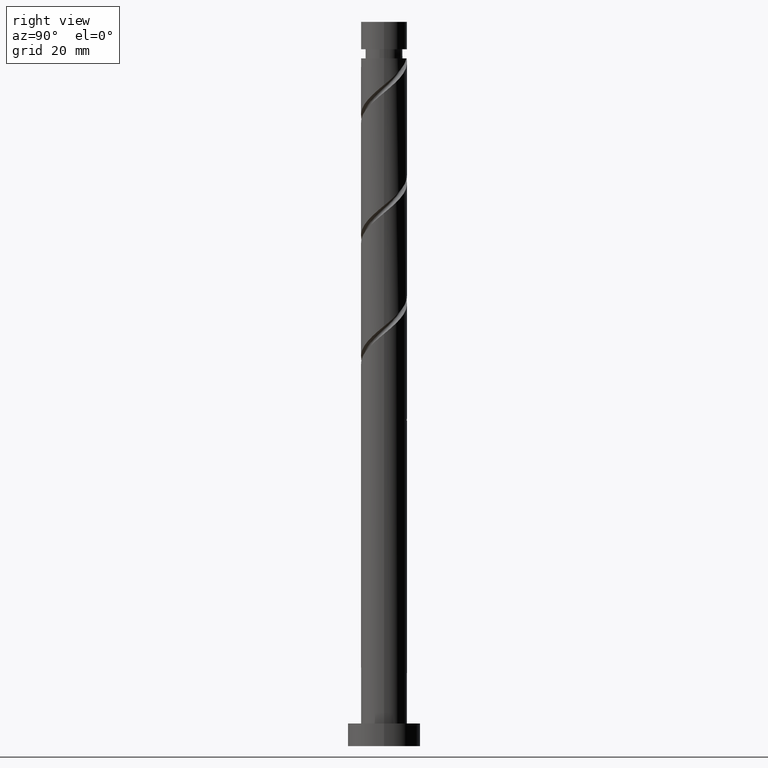
[diagram: clean part render]
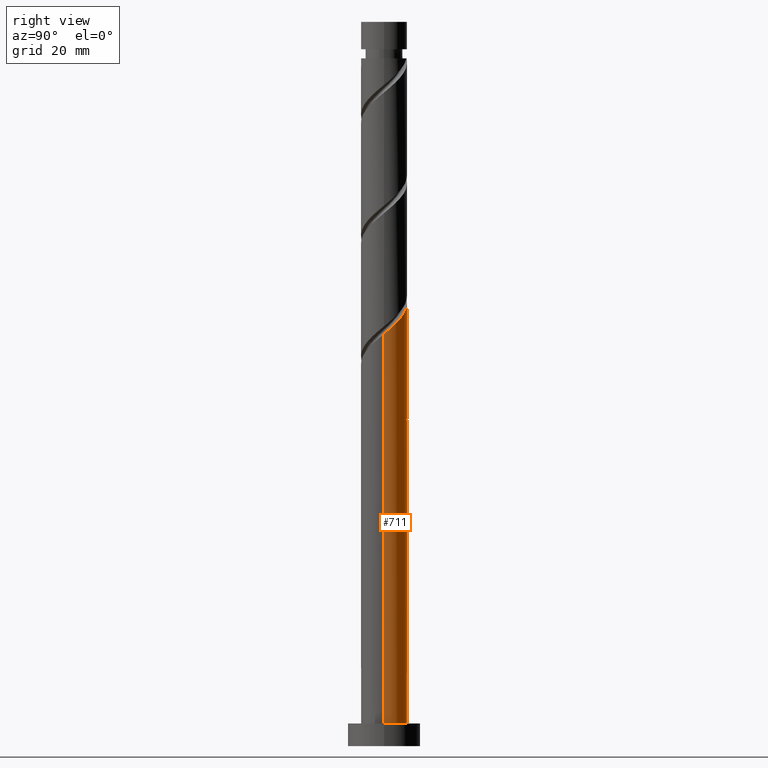
[diagram: same view with one face highlighted and labeled with its STEP entity id]
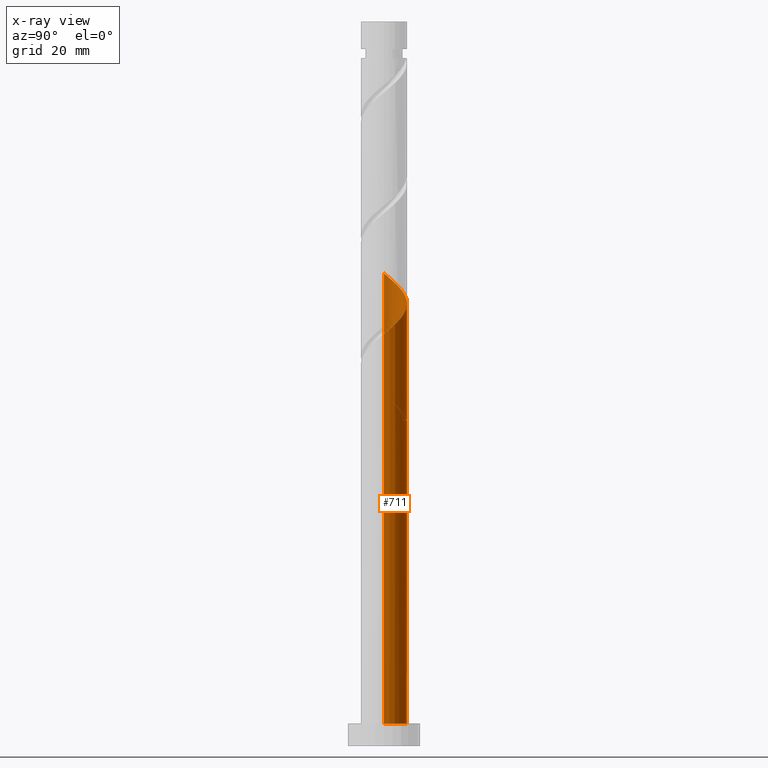
[diagram: x-ray of the same camera — body ghosted, the highlighted face saturated]
A machine part, right view. The second image highlights one B-rep face of the part: STEP entity #711.
The next image is the same camera in x-ray: the body ghosted, the highlighted face saturated — about 0% of this face is hidden behind the body in this view.
In plain terms, the highlighted cylindrical surface (edge-blend (fillet) strip) has radius 5.1 mm, axis along (-0, -0, -1).
Its self-contained STEP definition (entity closure, byte-faithful):
#16 = VECTOR ( 'NONE', #1076, 1000.000000000000000 ) ;
#23 = CARTESIAN_POINT ( 'NONE',  ( -2.381876442926737614, 4.509619120350492061, 73.13544743157346772 ) ) ;
#57 = CARTESIAN_POINT ( 'NONE',  ( -5.091561072240597063, 0.2932675359534169801, 79.19605349217950163 ) ) ;
#92 = ORIENTED_EDGE ( 'NONE', *, *, #280, .T. ) ;
#96 = FACE_OUTER_BOUND ( 'NONE', #1279, .T. ) ;
#98 = CARTESIAN_POINT ( 'NONE',  ( 1.848345375122719902, 4.753274594872729963, 96.16575046187648468 ) ) ;
#123 = VERTEX_POINT ( 'NONE', #685 ) ;
#126 = EDGE_CURVE ( 'NONE', #525, #123, #551, .T. ) ;
#130 = ORIENTED_EDGE ( 'NONE', *, *, #1146, .F. ) ;
#145 = EDGE_CURVE ( 'NONE', #1275, #1457, #539, .T. ) ;
#154 = CARTESIAN_POINT ( 'NONE',  ( -3.112626605226002763, 4.039994506981321898, 75.55968985581587560 ) ) ;
#161 = CARTESIAN_POINT ( 'NONE',  ( 0.2962832724618768565, 5.143918748178693434, 72.52938682551287286 ) ) ;
#169 = AXIS2_PLACEMENT_3D ( 'NONE', #1491, #1376, #318 ) ;
#172 = VERTEX_POINT ( 'NONE', #431 ) ;
#188 = CYLINDRICAL_SURFACE ( 'NONE', #1002, 5.100000000000001421 ) ;
#231 = CARTESIAN_POINT ( 'NONE',  ( -1.733491099235631827, 4.852081251821315000, 99.19605349217951584 ) ) ;
#238 = EDGE_CURVE ( 'NONE', #1457, #609, #1386, .T. ) ;
#280 = EDGE_CURVE ( 'NONE', #123, #172, #971, .T. ) ;
#283 = CARTESIAN_POINT ( 'NONE',  ( -0.4343221952601959979, 5.081472643900030839, 73.13544743157346772 ) ) ;
#305 =( BOUNDED_CURVE ( )  B_SPLINE_CURVE ( 2, ( #939, #648, #23, #396, #905, #988, #976, #1249, #1349, #1210, #435 ),
 .UNSPECIFIED., .F., .T. ) 
 B_SPLINE_CURVE_WITH_KNOTS ( ( 3, 2, 2, 2, 2, 3 ),
 ( 0.000000000000000000, 0.01136363636363635528, 0.02272727272727271056, 0.03409090909090906063, 0.04545454545454542111, 0.05452521624175128007 ),
 .UNSPECIFIED. ) 
 CURVE ( )  GEOMETRIC_REPRESENTATION_ITEM ( )  RATIONAL_B_SPLINE_CURVE ( ( 0.9090909090909183865, 0.8998376744372206248, 0.9090909090909183865, 0.8998376744372206248, 0.9090909090909183865, 0.8998376744372206248, 0.9090909090909183865, 0.8998376744372206248, 0.9090909090909183865, 0.9017048011079982217, 0.9061101570135586813 ) ) 
 REPRESENTATION_ITEM ( '' )  );
#309 = CARTESIAN_POINT ( 'NONE',  ( -4.555992555365309116, 2.406369817974963077, 77.37787167399770283 ) ) ;
#317 = CARTESIAN_POINT ( 'NONE',  ( 3.693490123188849505, 3.592466363838564547, 94.34756864369467166 ) ) ;
#318 = DIRECTION ( 'NONE',  ( 1.000000000000000000, 0.000000000000000000, 0.000000000000000000 ) ) ;
#330 = DIRECTION ( 'NONE',  ( -0.000000000000000000, -0.000000000000000000, -1.000000000000000000 ) ) ;
#352 = ORIENTED_EDGE ( 'NONE', *, *, #145, .F. ) ;
#360 = CARTESIAN_POINT ( 'NONE',  ( -5.100000000000011191, 0.5840975296641186532, 103.9212451205134045 ) ) ;
#368 = CARTESIAN_POINT ( 'NONE',  ( -5.100000000000000533, 5.190016784113299497E-15, 79.43944736541979523 ) ) ;
#396 = CARTESIAN_POINT ( 'NONE',  ( -3.030261786617844511, 4.167156988879670898, 73.74150803763409101 ) ) ;
#417 = CARTESIAN_POINT ( 'NONE',  ( -5.100000000000000533, 0.1467551852714976679, 79.31734936070158426 ) ) ;
#431 = CARTESIAN_POINT ( 'NONE',  ( -5.100000000000001421, 0.000000000000000000, 5.000000000000000000 ) ) ;
#435 = CARTESIAN_POINT ( 'NONE',  ( -5.100000000000009415, -3.873816562205578702E-15, 77.74053840681801830 ) ) ;
#440 = CARTESIAN_POINT ( 'NONE',  ( -4.124741339277075092, 2.999418090906762480, 76.77181106793710796 ) ) ;
#441 = ORIENTED_EDGE ( 'NONE', *, *, #126, .T. ) ;
#446 = CARTESIAN_POINT ( 'NONE',  ( -3.030261786617844511, 4.167156988879670898, 100.4081747043007340 ) ) ;
#466 = DIRECTION ( 'NONE',  ( -1.000000000000000000, 0.000000000000000000, 0.000000000000000000 ) ) ;
#469 = CARTESIAN_POINT ( 'NONE',  ( 5.100000000000009415, 3.619550610246139694E-15, 91.07387174015138953 ) ) ;
#488 =( BOUNDED_CURVE ( )  B_SPLINE_CURVE ( 2, ( #469, #983, #1104, #606, #1000, #1501, #731, #317, #835, #1093, #98, #1387, #1127, #1614, #992, #231, #1264, #446, #615, #1136, #1646, #1521, #752, #360, #1395 ),
 .UNSPECIFIED., .F., .T. ) 
 B_SPLINE_CURVE_WITH_KNOTS ( ( 3, 2, 2, 2, 2, 2, 2, 2, 2, 2, 2, 2, 3 ),
 ( 0.1795252162417513286, 0.1818181818181817677, 0.1931818181818182323, 0.2045454545454545858, 0.2159090909090909394, 0.2272727272727272929, 0.2386363636363636465, 0.2500000000000000000, 0.2613636363636363535, 0.2727272727272727071, 0.2840909090909090606, 0.2954545454545454142, 0.3045252162417514397 ),
 .UNSPECIFIED. ) 
 CURVE ( )  GEOMETRIC_REPRESENTATION_ITEM ( )  RATIONAL_B_SPLINE_CURVE ( ( 0.9061101570135587924, 0.9072237824201409007, 0.9090909090909183865, 0.8998376744372206248, 0.9090909090909183865, 0.8998376744372206248, 0.9090909090909183865, 0.8998376744372206248, 0.9090909090909183865, 0.8998376744372206248, 0.9090909090909183865, 0.8998376744372206248, 0.9090909090909183865, 0.8998376744372206248, 0.9090909090909183865, 0.8998376744372206248, 0.9090909090909183865, 0.8998376744372206248, 0.9090909090909183865, 0.8998376744372206248, 0.9090909090909183865, 0.8998376744372206248, 0.9090909090909183865, 0.9017048011079979997, 0.9061101570135587924 ) ) 
 REPRESENTATION_ITEM ( '' )  );
#498 = ORIENTED_EDGE ( 'NONE', *, *, #926, .F. ) ;
#500 = ORIENTED_EDGE ( 'NONE', *, *, #1160, .F. ) ;
#525 = VERTEX_POINT ( 'NONE', #554 ) ;
#531 = CARTESIAN_POINT ( 'NONE',  ( -5.100000000000000533, 5.190016784113299497E-15, 79.43944736541979523 ) ) ;
#536 = VECTOR ( 'NONE', #330, 1000.000000000000000 ) ;
#539 = LINE ( 'NONE', #558, #1350 ) ;
#551 = LINE ( 'NONE', #1326, #16 ) ;
#554 = CARTESIAN_POINT ( 'NONE',  ( 5.100000000000009415, 3.619550610246139694E-15, 91.07387174015137532 ) ) ;
#558 = CARTESIAN_POINT ( 'NONE',  ( -5.100000000000001421, 0.000000000000000000, 160.0000000000000000 ) ) ;
#573 = DIRECTION ( 'NONE',  ( -1.000000000000000000, 0.000000000000000000, 0.000000000000000000 ) ) ;
#606 = CARTESIAN_POINT ( 'NONE',  ( 5.049395566237111943, 1.025323500691386114, 91.92332621945227800 ) ) ;
#609 = VERTEX_POINT ( 'NONE', #1556 ) ;
#615 = CARTESIAN_POINT ( 'NONE',  ( -3.555900236163441086, 3.655895719307769021, 101.0142353103613573 ) ) ;
#621 = CARTESIAN_POINT ( 'NONE',  ( -5.100000000000008527, -3.873816562205578702E-15, 77.74053840681801830 ) ) ;
#648 = CARTESIAN_POINT ( 'NONE',  ( -1.733491099235631827, 4.852081251821315000, 72.52938682551285865 ) ) ;
#654 = EDGE_CURVE ( 'NONE', #1341, #609, #699, .T. ) ;
#685 = CARTESIAN_POINT ( 'NONE',  ( 5.100000000000001421, 6.245698675651502811E-16, 5.000000000000000000 ) ) ;
#695 = CARTESIAN_POINT ( 'NONE',  ( 0.000000000000000000, 0.000000000000000000, 71.92332621945227800 ) ) ;
#699 = CIRCLE ( 'NONE', #733, 5.100000000000001421 ) ;
#706 = DIRECTION ( 'NONE',  ( -0.000000000000000000, -0.000000000000000000, -1.000000000000000000 ) ) ;
#711 = ADVANCED_FACE ( 'NONE', ( #96 ), #188, .T. ) ;
#720 = CARTESIAN_POINT ( 'NONE',  ( -5.100000000000001421, 0.000000000000000000, 160.0000000000000000 ) ) ;
#731 = CARTESIAN_POINT ( 'NONE',  ( 4.124741339277083085, 2.999418090906763812, 93.74150803763406259 ) ) ;
#733 = AXIS2_PLACEMENT_3D ( 'NONE', #695, #826, #466 ) ;
#752 = CARTESIAN_POINT ( 'NONE',  ( -4.967940086286698254, 1.153070379060097350, 103.4384777346037367 ) ) ;
#826 = DIRECTION ( 'NONE',  ( 0.000000000000000000, -0.000000000000000000, -1.000000000000000000 ) ) ;
#835 = CARTESIAN_POINT ( 'NONE',  ( 3.112626605226007648, 4.039994506981327227, 94.95362924975526653 ) ) ;
#859 = CARTESIAN_POINT ( 'NONE',  ( 0.000000000000000000, 0.000000000000000000, 160.0000000000000000 ) ) ;
#905 = CARTESIAN_POINT ( 'NONE',  ( -3.555900236163441086, 3.655895719307769021, 74.34756864369467166 ) ) ;
#926 = EDGE_CURVE ( 'NONE', #1341, #1302, #305, .T. ) ;
#939 = CARTESIAN_POINT ( 'NONE',  ( -1.014887185848752926, 4.998000000000006438, 71.92332621945226379 ) ) ;
#952 = CARTESIAN_POINT ( 'NONE',  ( -3.693490123188840624, 3.592466363838562327, 76.16575046187647047 ) ) ;
#971 = CIRCLE ( 'NONE', #169, 5.100000000000001421 ) ;
#976 = CARTESIAN_POINT ( 'NONE',  ( -4.441846140019169553, 2.505993389535752680, 75.55968985581590402 ) ) ;
#983 = CARTESIAN_POINT ( 'NONE',  ( 5.100000000000008527, 0.1467551852714962246, 91.19596974486958629 ) ) ;
#988 = CARTESIAN_POINT ( 'NONE',  ( -4.081538685709038994, 3.144634449735867143, 74.95362924975529495 ) ) ;
#992 = CARTESIAN_POINT ( 'NONE',  ( -1.014887185848752926, 4.998000000000006438, 98.58999288611893519 ) ) ;
#1000 = CARTESIAN_POINT ( 'NONE',  ( 4.802694060801214526, 1.715846659333175150, 92.52938682551285865 ) ) ;
#1002 = AXIS2_PLACEMENT_3D ( 'NONE', #859, #706, #573 ) ;
#1062 = DIRECTION ( 'NONE',  ( -0.000000000000000000, -0.000000000000000000, -1.000000000000000000 ) ) ;
#1076 = DIRECTION ( 'NONE',  ( -0.000000000000000000, -0.000000000000000000, -1.000000000000000000 ) ) ;
#1086 = CARTESIAN_POINT ( 'NONE',  ( -5.049395566237103949, 1.025323500691386336, 78.58999288611892098 ) ) ;
#1093 = CARTESIAN_POINT ( 'NONE',  ( 2.531763087263169343, 4.487522650124088130, 95.55968985581587560 ) ) ;
#1104 = CARTESIAN_POINT ( 'NONE',  ( 5.091561072240605057, 0.2932675359534154813, 91.31726561339164050 ) ) ;
#1127 = CARTESIAN_POINT ( 'NONE',  ( 0.4343221952601978297, 5.081472643900038832, 97.37787167399770283 ) ) ;
#1136 = CARTESIAN_POINT ( 'NONE',  ( -4.081538685709038994, 3.144634449735867143, 101.6202959164219521 ) ) ;
#1146 = EDGE_CURVE ( 'NONE', #1302, #172, #1636, .T. ) ;
#1156 = CARTESIAN_POINT ( 'NONE',  ( -5.100000000000008527, -3.873816562205578702E-15, 104.4072050734847181 ) ) ;
#1160 = EDGE_CURVE ( 'NONE', #525, #1275, #488, .T. ) ;
#1161 = CARTESIAN_POINT ( 'NONE',  ( -1.014887185848752926, 4.998000000000006438, 71.92332621945226379 ) ) ;
#1182 = CARTESIAN_POINT ( 'NONE',  ( -2.531763087263166678, 4.487522650124081913, 74.95362924975529495 ) ) ;
#1210 = CARTESIAN_POINT ( 'NONE',  ( -5.100000000000008527, 0.5840975296641284231, 77.25457845384671884 ) ) ;
#1246 = ORIENTED_EDGE ( 'NONE', *, *, #238, .F. ) ;
#1249 = CARTESIAN_POINT ( 'NONE',  ( -4.802153594329298336, 1.867352329335639771, 76.16575046187649889 ) ) ;
#1264 = CARTESIAN_POINT ( 'NONE',  ( -2.381876442926737614, 4.509619120350492061, 99.80211409824012492 ) ) ;
#1275 = VERTEX_POINT ( 'NONE', #1156 ) ;
#1279 = EDGE_LOOP ( 'NONE', ( #500, #441, #92, #130, #498, #1589, #1246, #352 ) ) ;
#1302 = VERTEX_POINT ( 'NONE', #621 ) ;
#1326 = CARTESIAN_POINT ( 'NONE',  ( 5.100000000000001421, 6.245698675651502811E-16, 160.0000000000000000 ) ) ;
#1341 = VERTEX_POINT ( 'NONE', #1161 ) ;
#1349 = CARTESIAN_POINT ( 'NONE',  ( -4.967940086286698254, 1.153070379060097350, 76.77181106793707954 ) ) ;
#1350 = VECTOR ( 'NONE', #1062, 1000.000000000000000 ) ;
#1376 = DIRECTION ( 'NONE',  ( 0.000000000000000000, 0.000000000000000000, 1.000000000000000000 ) ) ;
#1386 =( BOUNDED_CURVE ( )  B_SPLINE_CURVE ( 2, ( #531, #417, #57, #1086, #1596, #309, #440, #952, #154, #1182, #1569, #1438, #283, #161, #1604 ),
 .UNSPECIFIED., .F., .T. ) 
 B_SPLINE_CURVE_WITH_KNOTS ( ( 3, 2, 2, 2, 2, 2, 2, 3 ),
 ( 0.9295252162417513286, 0.9318181818181817677, 0.9431818181818182323, 0.9545454545454545858, 0.9659090909090909394, 0.9772727272727272929, 0.9886363636363636465, 1.000000000000000000 ),
 .UNSPECIFIED. ) 
 CURVE ( )  GEOMETRIC_REPRESENTATION_ITEM ( )  RATIONAL_B_SPLINE_CURVE ( ( 0.9061101570135526861, 0.9072237824201347944, 0.9090909090909122803, 0.8998376744372147407, 0.9090909090909122803, 0.8998376744372147407, 0.9090909090909122803, 0.8998376744372147407, 0.9090909090909122803, 0.8998376744372147407, 0.9090909090909122803, 0.8998376744372147407, 0.9090909090909122803, 0.8998376744372147407, 0.9090909090909122803 ) ) 
 REPRESENTATION_ITEM ( '' )  );
#1387 = CARTESIAN_POINT ( 'NONE',  ( 1.164927662982272016, 5.019026539621375349, 96.77181106793710796 ) ) ;
#1395 = CARTESIAN_POINT ( 'NONE',  ( -5.100000000000008527, -3.873816562205578702E-15, 104.4072050734847323 ) ) ;
#1438 = CARTESIAN_POINT ( 'NONE',  ( -1.164927662982268908, 5.019026539621368244, 73.74150803763407680 ) ) ;
#1457 = VERTEX_POINT ( 'NONE', #368 ) ;
#1491 = CARTESIAN_POINT ( 'NONE',  ( 0.000000000000000000, 0.000000000000000000, 5.000000000000000000 ) ) ;
#1501 = CARTESIAN_POINT ( 'NONE',  ( 4.555992555365317109, 2.406369817974964853, 93.13544743157346772 ) ) ;
#1521 = CARTESIAN_POINT ( 'NONE',  ( -4.802153594329298336, 1.867352329335639771, 102.8324171285431561 ) ) ;
#1556 = CARTESIAN_POINT ( 'NONE',  ( 1.014887185848754925, 4.998000000000001108, 71.92332621945226379 ) ) ;
#1569 = CARTESIAN_POINT ( 'NONE',  ( -1.848345375122716794, 4.753274594872724634, 74.34756864369465745 ) ) ;
#1589 = ORIENTED_EDGE ( 'NONE', *, *, #654, .T. ) ;
#1596 = CARTESIAN_POINT ( 'NONE',  ( -4.802694060801208309, 1.715846659333174706, 77.98393228005831190 ) ) ;
#1604 = CARTESIAN_POINT ( 'NONE',  ( 1.014887185848754925, 4.998000000000001108, 71.92332621945226379 ) ) ;
#1614 = CARTESIAN_POINT ( 'NONE',  ( -0.2962832724618756353, 5.143918748178701428, 97.98393228005829769 ) ) ;
#1636 = LINE ( 'NONE', #720, #536 ) ;
#1646 = CARTESIAN_POINT ( 'NONE',  ( -4.441846140019169553, 2.505993389535752680, 102.2263565224825328 ) ) ;